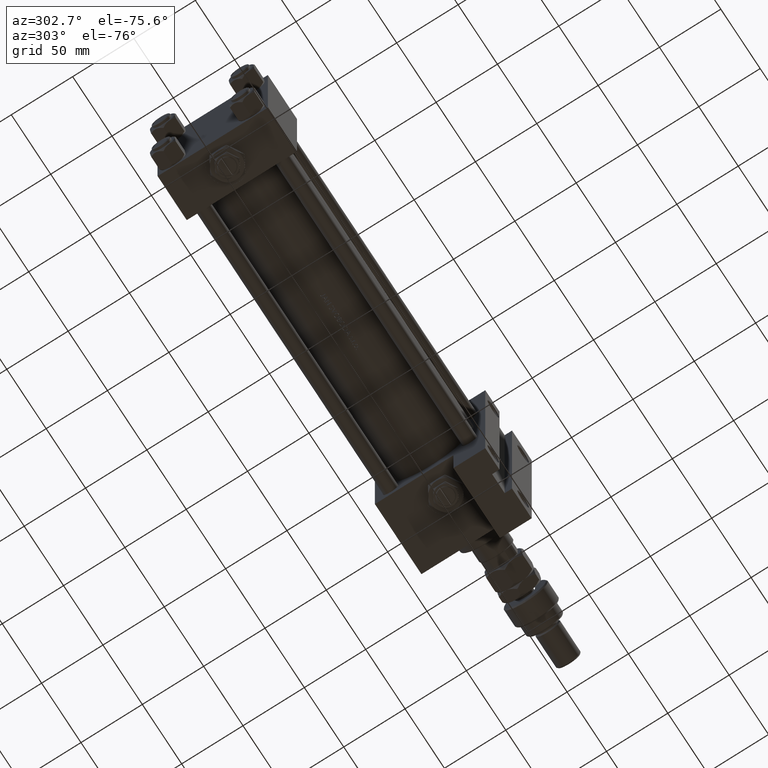
[diagram: clean part render]
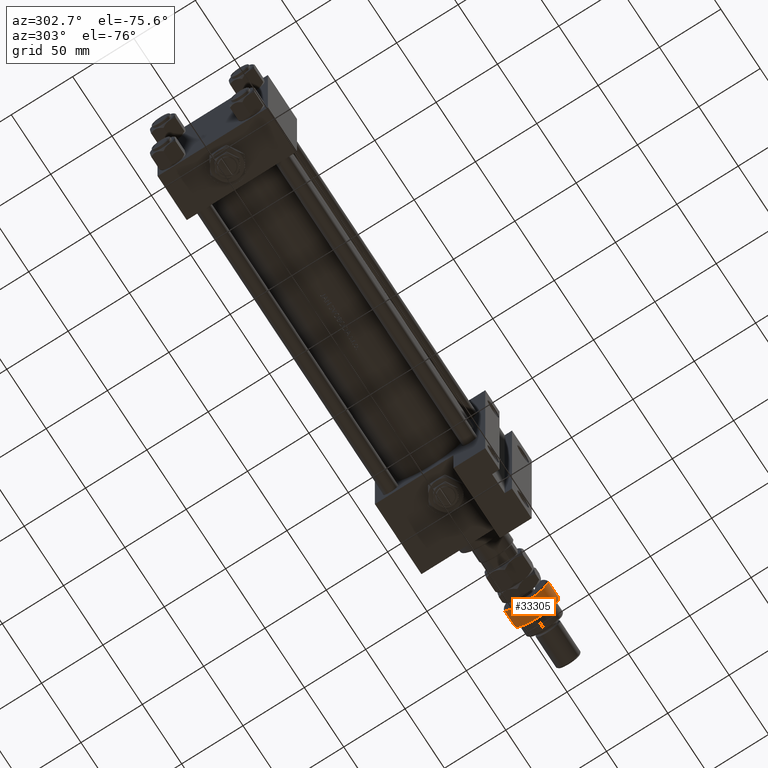
[diagram: same view with one face highlighted and labeled with its STEP entity id]
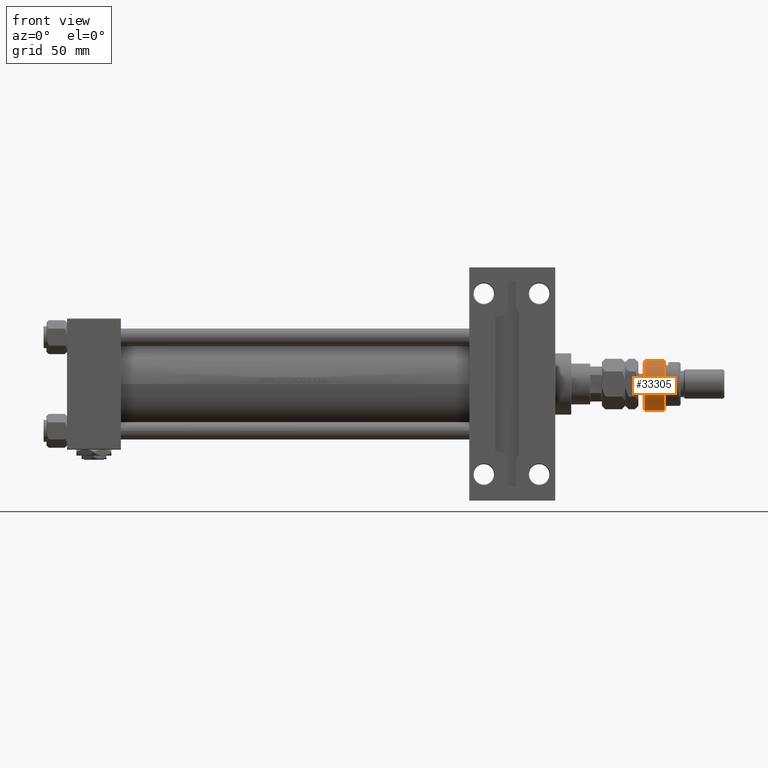
[diagram: same view with one face highlighted and labeled with its STEP entity id]
A machine part, auxiliary view. The second image highlights one B-rep face of the part: STEP entity #33305.
A second angle (front view) of the same face is appended — the face is thin or edge-on in the first view.
In plain terms, the highlighted cylindrical surface (edge-blend (fillet) strip) has radius 18 mm, axis along (-1, -0, 0).
Its self-contained STEP definition (entity closure, byte-faithful):
#53 = CIRCLE ( 'NONE', #32284, 18.00000000000000000 ) ;
#647 = LINE ( 'NONE', #4635, #20181 ) ;
#1536 = AXIS2_PLACEMENT_3D ( 'NONE', #51966, #19796, #11553 ) ;
#1560 = VERTEX_POINT ( 'NONE', #13680 ) ;
#1960 = VERTEX_POINT ( 'NONE', #6657 ) ;
#4315 = ORIENTED_EDGE ( 'NONE', *, *, #45587, .T. ) ;
#4635 = CARTESIAN_POINT ( 'NONE',  ( -16.36306817195357155, -7.500000000000000000, 17.50000000000000000 ) ) ;
#5175 = EDGE_CURVE ( 'NONE', #1560, #30715, #5717, .T. ) ;
#5717 = LINE ( 'NONE', #26172, #37821 ) ;
#6030 = DIRECTION ( 'NONE',  ( -1.000000000000000000, 0.000000000000000000, 0.000000000000000000 ) ) ;
#6657 = CARTESIAN_POINT ( 'NONE',  ( 18.00000000000000000, 0.000000000000000000, 1.000000000000011324 ) ) ;
#7761 = CARTESIAN_POINT ( 'NONE',  ( -16.36306817195357155, -7.500000000000000000, 1.000000000000011324 ) ) ;
#7878 = VERTEX_POINT ( 'NONE', #7761 ) ;
#8106 = DIRECTION ( 'NONE',  ( -0.000000000000000000, -0.000000000000000000, -1.000000000000000000 ) ) ;
#9639 = EDGE_CURVE ( 'NONE', #1560, #30311, #33327, .T. ) ;
#10019 = DIRECTION ( 'NONE',  ( -0.000000000000000000, -0.000000000000000000, -1.000000000000000000 ) ) ;
#11553 = DIRECTION ( 'NONE',  ( 1.000000000000000000, 0.000000000000000000, 0.000000000000000000 ) ) ;
#11691 = CARTESIAN_POINT ( 'NONE',  ( -16.36306817195357155, 7.500000000000000000, 1.000000000000011324 ) ) ;
#12908 = ORIENTED_EDGE ( 'NONE', *, *, #45751, .T. ) ;
#13493 = ORIENTED_EDGE ( 'NONE', *, *, #25855, .T. ) ;
#13680 = CARTESIAN_POINT ( 'NONE',  ( -16.36306817195357155, 7.500000000000000000, 14.99999999999999645 ) ) ;
#13771 = CARTESIAN_POINT ( 'NONE',  ( 0.000000000000000000, 0.000000000000000000, 16.00000000000000000 ) ) ;
#19796 = DIRECTION ( 'NONE',  ( -0.000000000000000000, -0.000000000000000000, 1.000000000000000000 ) ) ;
#20181 = VECTOR ( 'NONE', #8106, 1000.000000000000000 ) ;
#20882 = DIRECTION ( 'NONE',  ( 1.000000000000000000, 0.000000000000000000, 0.000000000000000000 ) ) ;
#23512 = CARTESIAN_POINT ( 'NONE',  ( -16.36306817195357155, -7.500000000000000000, 14.99999999999999645 ) ) ;
#24507 = AXIS2_PLACEMENT_3D ( 'NONE', #13771, #10019, #6030 ) ;
#25664 = DIRECTION ( 'NONE',  ( -0.000000000000000000, -0.000000000000000000, 1.000000000000000000 ) ) ;
#25827 = DIRECTION ( 'NONE',  ( 0.000000000000000000, 0.000000000000000000, -1.000000000000000000 ) ) ;
#25855 = EDGE_CURVE ( 'NONE', #7878, #1960, #53, .T. ) ;
#25969 = CYLINDRICAL_SURFACE ( 'NONE', #24507, 18.00000000000000000 ) ;
#26172 = CARTESIAN_POINT ( 'NONE',  ( -16.36306817195357155, 7.500000000000000000, 17.50000000000000000 ) ) ;
#26191 = EDGE_LOOP ( 'NONE', ( #40672, #32590, #12908, #13493, #4315 ) ) ;
#30311 = VERTEX_POINT ( 'NONE', #23512 ) ;
#30715 = VERTEX_POINT ( 'NONE', #11691 ) ;
#32284 = AXIS2_PLACEMENT_3D ( 'NONE', #45071, #25664, #20882 ) ;
#32590 = ORIENTED_EDGE ( 'NONE', *, *, #9639, .T. ) ;
#33305 = ADVANCED_FACE ( 'NONE', ( #38193 ), #25969, .T. ) ;
#33327 = CIRCLE ( 'NONE', #50332, 18.00000000000000000 ) ;
#34641 = CIRCLE ( 'NONE', #1536, 18.00000000000000000 ) ;
#37821 = VECTOR ( 'NONE', #45866, 1000.000000000000000 ) ;
#38046 = CARTESIAN_POINT ( 'NONE',  ( 0.000000000000000000, 0.000000000000000000, 14.99999999999999645 ) ) ;
#38193 = FACE_OUTER_BOUND ( 'NONE', #26191, .T. ) ;
#40672 = ORIENTED_EDGE ( 'NONE', *, *, #5175, .F. ) ;
#45071 = CARTESIAN_POINT ( 'NONE',  ( 0.000000000000000000, 0.000000000000000000, 1.000000000000011324 ) ) ;
#45587 = EDGE_CURVE ( 'NONE', #1960, #30715, #34641, .T. ) ;
#45751 = EDGE_CURVE ( 'NONE', #30311, #7878, #647, .T. ) ;
#45767 = DIRECTION ( 'NONE',  ( 1.000000000000000000, 0.000000000000000000, 0.000000000000000000 ) ) ;
#45866 = DIRECTION ( 'NONE',  ( -0.000000000000000000, -0.000000000000000000, -1.000000000000000000 ) ) ;
#50332 = AXIS2_PLACEMENT_3D ( 'NONE', #38046, #25827, #45767 ) ;
#51966 = CARTESIAN_POINT ( 'NONE',  ( 0.000000000000000000, 0.000000000000000000, 1.000000000000011324 ) ) ;